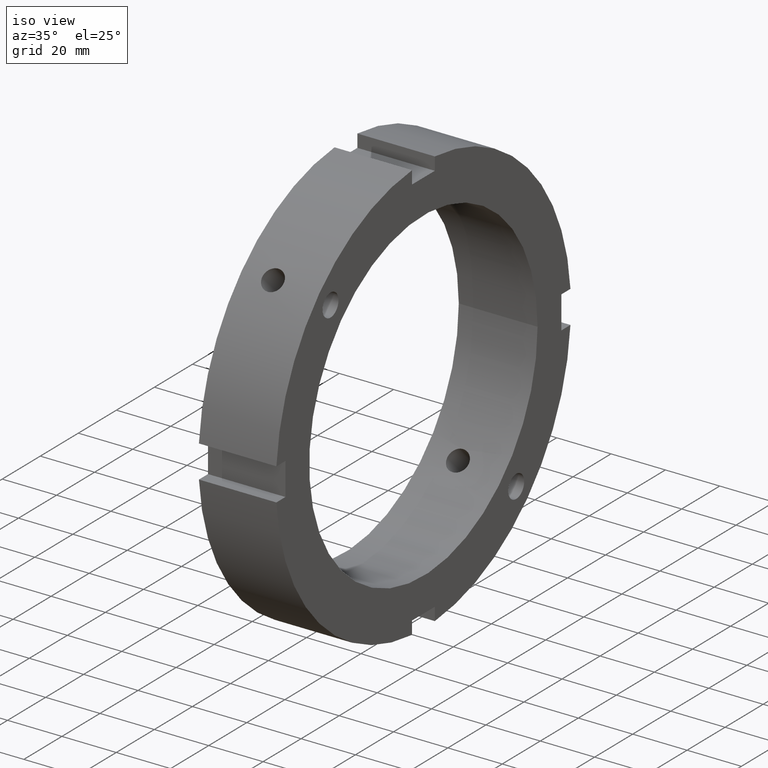
[diagram: clean part render]
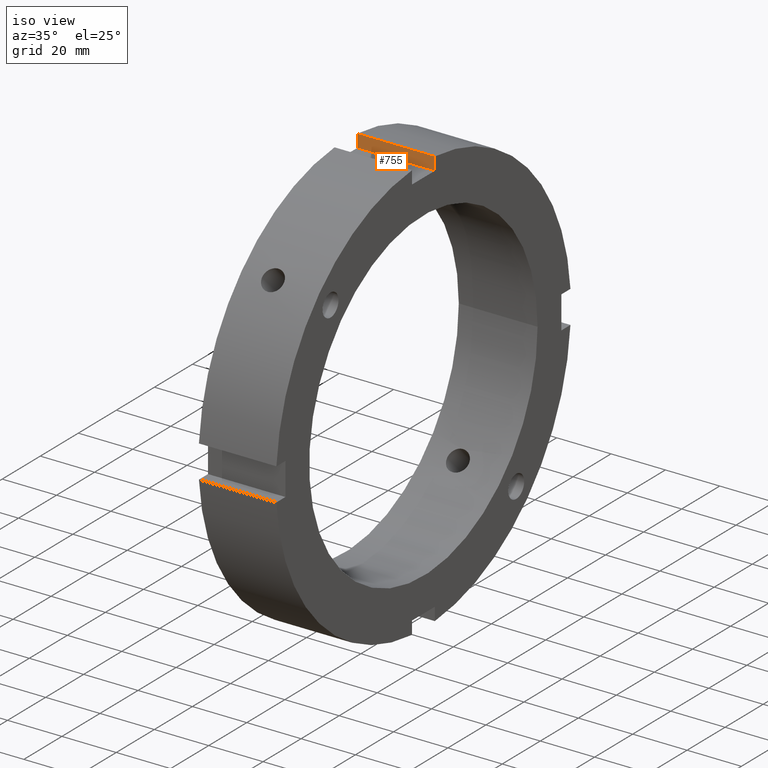
[diagram: same view with one face highlighted and labeled with its STEP entity id]
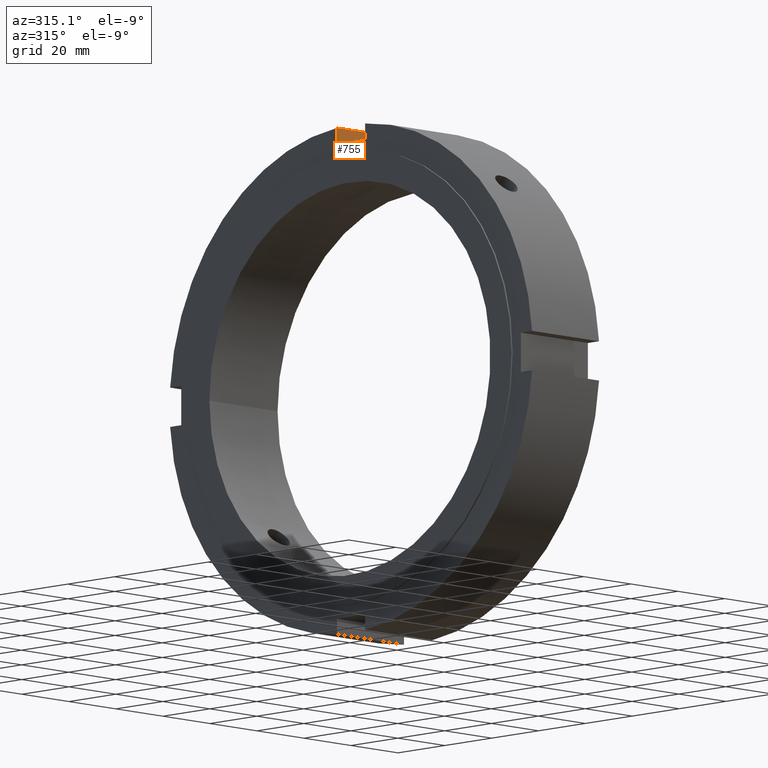
[diagram: same view with one face highlighted and labeled with its STEP entity id]
A machine part, iso view. The second image highlights one B-rep face of the part: STEP entity #755.
A second angle (auxiliary view) of the same face is appended — the face is thin or edge-on in the first view.
In plain terms, the highlighted planar face has unit normal (0, 1, 0).
Its self-contained STEP definition (entity closure, byte-faithful):
#716=CARTESIAN_POINT('',(28.999999999999986,6.000000000000001,72.5));
#717=DIRECTION('',(0.0,1.0,0.0));
#718=DIRECTION('',(-1.0,0.0,0.0));
#719=AXIS2_PLACEMENT_3D('',#716,#717,#718);
#720=PLANE('',#719);
#721=CARTESIAN_POINT('',(0.49999999999998,6.000000000000001,72.5));
#722=VERTEX_POINT('',#721);
#723=CARTESIAN_POINT('',(0.49999999999998,6.000000000000001,77.26739286400182));
#724=VERTEX_POINT('',#723);
#725=CARTESIAN_POINT('',(0.49999999999998,6.000000000000007,72.5));
#726=DIRECTION('',(0.0,0.0,1.0));
#727=VECTOR('',#726,4.76739286400182);
#728=LINE('',#725,#727);
#729=EDGE_CURVE('',#722,#724,#728,.T.);
#730=ORIENTED_EDGE('',*,*,#729,.F.);
#731=CARTESIAN_POINT('',(28.999999999999986,6.000000000000001,72.5));
#732=VERTEX_POINT('',#731);
#733=CARTESIAN_POINT('',(28.999999999999986,6.000000000000001,72.5));
#734=DIRECTION('',(-1.0,0.0,0.0));
#735=VECTOR('',#734,28.500000000000007);
#736=LINE('',#733,#735);
#737=EDGE_CURVE('',#732,#722,#736,.T.);
#738=ORIENTED_EDGE('',*,*,#737,.F.);
#739=CARTESIAN_POINT('',(28.999999999999986,6.000000000000001,77.26739286400182));
#740=VERTEX_POINT('',#739);
#741=CARTESIAN_POINT('',(28.999999999999986,5.999999999999999,77.26739286400182));
#742=DIRECTION('',(0.0,0.0,-1.0));
#743=VECTOR('',#742,4.76739286400182);
#744=LINE('',#741,#743);
#745=EDGE_CURVE('',#740,#732,#744,.T.);
#746=ORIENTED_EDGE('',*,*,#745,.F.);
#747=CARTESIAN_POINT('',(0.49999999999998,6.000000000000001,77.26739286400182));
#748=DIRECTION('',(1.0,0.0,0.0));
#749=VECTOR('',#748,28.500000000000007);
#750=LINE('',#747,#749);
#751=EDGE_CURVE('',#724,#740,#750,.T.);
#752=ORIENTED_EDGE('',*,*,#751,.F.);
#753=EDGE_LOOP('',(#730,#738,#746,#752));
#754=FACE_OUTER_BOUND('',#753,.T.);
#755=ADVANCED_FACE('',(#754),#720,.F.);